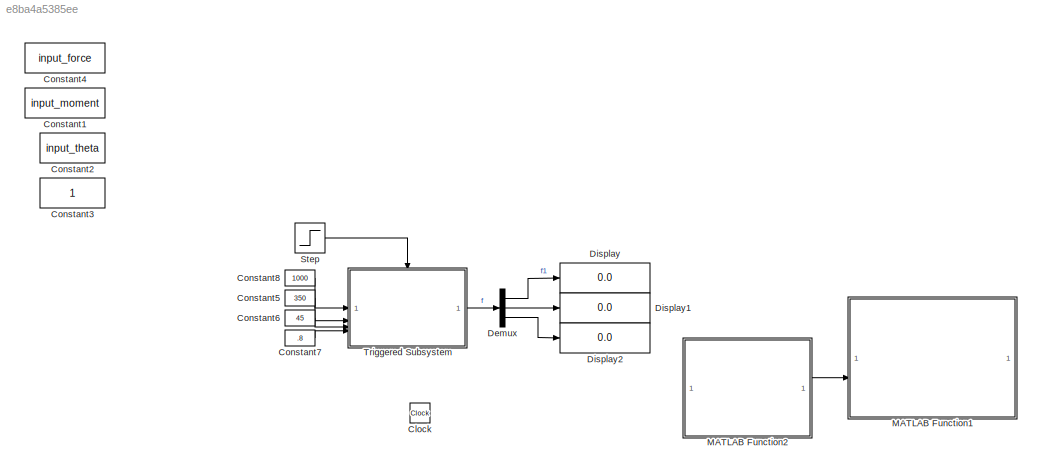
MODEL slx_e8ba4a5385ee
KIND model
CONFIG AbsTol = auto
CONFIG EnableMultiTasking = off
CONFIG FixedStep = auto
CONFIG MaxStep = auto
CONFIG MinStep = auto
CONFIG RelTol = 1e-3
CONFIG SampleTimeConstraint = Unconstrained
CONFIG SolverName = VariableStepAuto
CONFIG StartTime = 0.0
CONFIG StopTime = inf
WORKSPACE source: mxarray member
WORKSPACE input_force = 1000
WORKSPACE input_moment = 300
WORKSPACE input_radius = 1
WORKSPACE input_theta = 0.785398163397
BLOCK [Clock] Clock
  Commented = on
BLOCK [Constant] Constant1
  Value = input_moment
BLOCK [Constant] Constant2
  Value = input_theta
BLOCK [Constant] Constant3
BLOCK [Constant] Constant4
  Value = input_force
BLOCK [Constant] Constant5
  Value = 350
BLOCK [Constant] Constant6
  Value = 45
BLOCK [Constant] Constant7
  Value = .8
BLOCK [Constant] Constant8
  Value = 1000
BLOCK [Demux] Demux
  Outputs = 3
BLOCK [Display] Display
  Decimation = 1
BLOCK [Display] Display1
  Decimation = 1
BLOCK [Display] Display2
  Decimation = 1
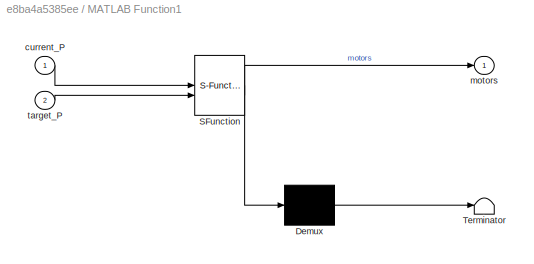
BLOCK [SubSystem] MATLAB Function1
  Commented = on
  ErrorFcn = Stateflow.Translate.translate
  PermitHierarchicalResolution = ExplicitOnly
  SFBlockType = MATLAB Function
  TreatAsAtomicUnit = on
BLOCK [Demux] MATLAB Function1/ Demux 
  Outputs = 1
BLOCK [S-Function] MATLAB Function1/ SFunction 
  EnableBusSupport = off
  FunctionName = sf_sfun
  PortCounts = [2 2]
  SFcnIsStateOwnerBlock = off
  SFunctionDeploymentMode = off
  Tag = Stateflow S-Function 1
BLOCK [Terminator] MATLAB Function1/ Terminator 
BLOCK [Inport] MATLAB Function1/current_P
BLOCK [Outport] MATLAB Function1/motors
BLOCK [Inport] MATLAB Function1/target_P
  Port = 2
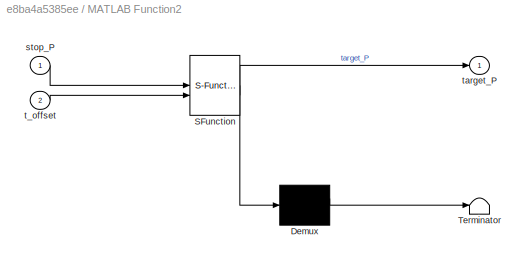
BLOCK [SubSystem] MATLAB Function2
  Commented = on
  ErrorFcn = Stateflow.Translate.translate
  PermitHierarchicalResolution = ExplicitOnly
  SFBlockType = MATLAB Function
  TreatAsAtomicUnit = on
BLOCK [Demux] MATLAB Function2/ Demux 
  Outputs = 1
BLOCK [S-Function] MATLAB Function2/ SFunction 
  EnableBusSupport = off
  FunctionName = sf_sfun
  PortCounts = [2 2]
  SFcnIsStateOwnerBlock = off
  SFunctionDeploymentMode = off
  Tag = Stateflow S-Function 3
BLOCK [Terminator] MATLAB Function2/ Terminator 
BLOCK [Inport] MATLAB Function2/stop_P
BLOCK [Inport] MATLAB Function2/t_offset
  Port = 2
BLOCK [Outport] MATLAB Function2/target_P
BLOCK [Step] Step
  SampleTime = 0
  Time = 0
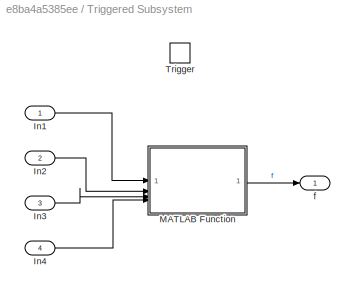
BLOCK [SubSystem] Triggered Subsystem
  TreatAsAtomicUnit = on
BLOCK [Inport] Triggered Subsystem/In1
BLOCK [Inport] Triggered Subsystem/In2
  Port = 2
BLOCK [Inport] Triggered Subsystem/In3
  Port = 3
BLOCK [Inport] Triggered Subsystem/In4
  Port = 4
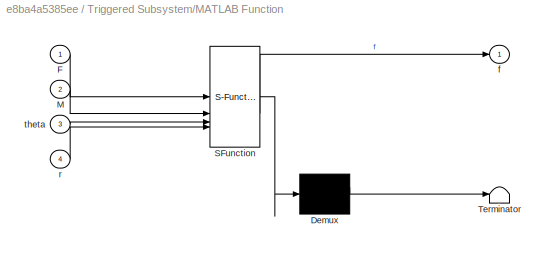
BLOCK [SubSystem] Triggered Subsystem/MATLAB Function
  ErrorFcn = Stateflow.Translate.translate
  PermitHierarchicalResolution = ExplicitOnly
  SFBlockType = MATLAB Function
  TreatAsAtomicUnit = on
BLOCK [Demux] Triggered Subsystem/MATLAB Function/ Demux 
  Outputs = 1
BLOCK [S-Function] Triggered Subsystem/MATLAB Function/ SFunction 
  EnableBusSupport = off
  FunctionName = sf_sfun
  PortCounts = [4 2]
  SFcnIsStateOwnerBlock = off
  SFunctionDeploymentMode = off
  Tag = Stateflow S-Function 2
BLOCK [Terminator] Triggered Subsystem/MATLAB Function/ Terminator 
BLOCK [Inport] Triggered Subsystem/MATLAB Function/F
BLOCK [Inport] Triggered Subsystem/MATLAB Function/M
  Port = 2
BLOCK [Outport] Triggered Subsystem/MATLAB Function/f
BLOCK [Inport] Triggered Subsystem/MATLAB Function/r
  Port = 4
BLOCK [Inport] Triggered Subsystem/MATLAB Function/theta
  Port = 3
BLOCK [TriggerPort] Triggered Subsystem/Trigger
  InitialTriggerSignalState = zero
  StatesWhenEnabling = held
  VariantControl = (inherit)
BLOCK [Outport] Triggered Subsystem/f
LINE Constant5:1 -> Triggered Subsystem:2
LINE Constant6:1 -> Triggered Subsystem:3
LINE Constant7:1 -> Triggered Subsystem:4
LINE Constant8:1 -> Triggered Subsystem:1
LINE Demux:1 -> Display:1
LINE Demux:2 -> Display1:1
LINE Demux:3 -> Display2:1
LINE MATLAB Function2:1 -> MATLAB Function1:2
LINE Step:1 -> Triggered Subsystem:trigger
LINE Triggered Subsystem/In1:1 -> Triggered Subsystem/MATLAB Function:1
LINE Triggered Subsystem/In2:1 -> Triggered Subsystem/MATLAB Function:2
LINE Triggered Subsystem/In3:1 -> Triggered Subsystem/MATLAB Function:3
LINE Triggered Subsystem/In4:1 -> Triggered Subsystem/MATLAB Function:4
LINE Triggered Subsystem/MATLAB Function:1 -> Triggered Subsystem/f:1
LINE Triggered Subsystem:1 -> Demux:1
CHART MATLAB Function1 states=1 transitions=1
  STATE_LABEL 'eML_blk_kernel()'
  STATE_LABEL 'SCRIPT:\nfunction motors  = control_step(current_P, target_P)\n    motors = control_step(current_P, target_P);\nend'
CHART Triggered
Subsystem/MATLAB Function states=1 transitions=1
  STATE_LABEL 'eML_blk_kernel()'
  STATE_LABEL 'SCRIPT:\nfunction f   = calc_forces(F, M, theta, r)\n    % F       compressive force [N]\n    % M       bending moment [Nm]\n    % theta   angle moment is applied at [rad]\n    % r       radius of actuators [m]\n    f = [0 0 0];\n    f(1) = 1/3 * (F + 2*M*cos(theta)/r);\n    f(2) = 1/3 * (F + (sqrt(3)*M*sin(theta) - M*cos(theta))/r);\n    f(3) = 1/3 * (F + (-sqrt(3)*M*sin(theta) - M*cos(theta))/r);\nend'
CHART MATLAB Function2 states=1 transitions=1
  STATE_LABEL 'eML_blk_kernel()'
  STATE_LABEL 'SCRIPT:\nfunction target_P  = func(stop_P, t_offset)\n\ny = u;\n'
CHART  states=0 transitions=0
CHART  states=0 transitions=0
CHART  states=0 transitions=0
